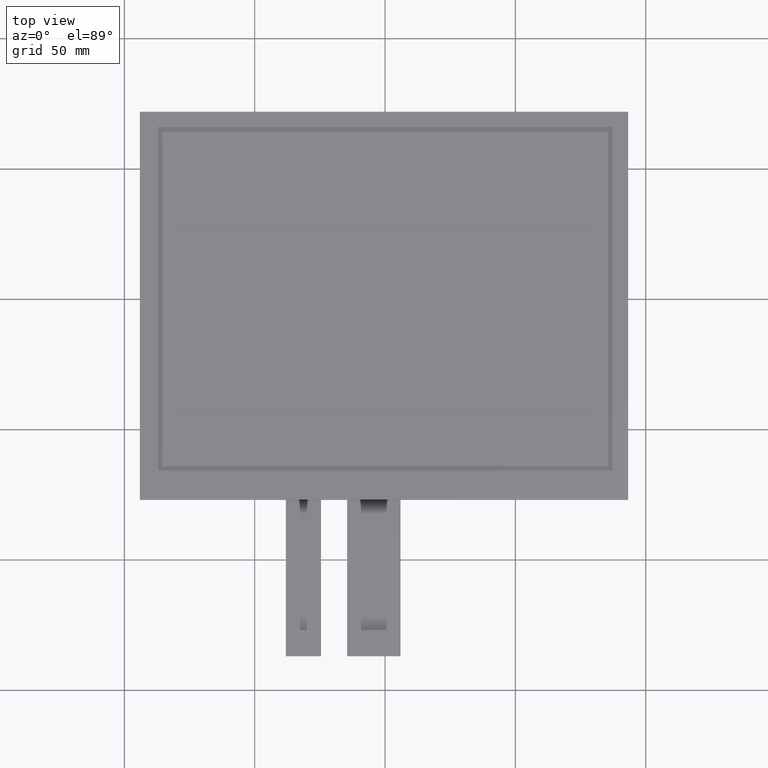
[diagram: clean part render]
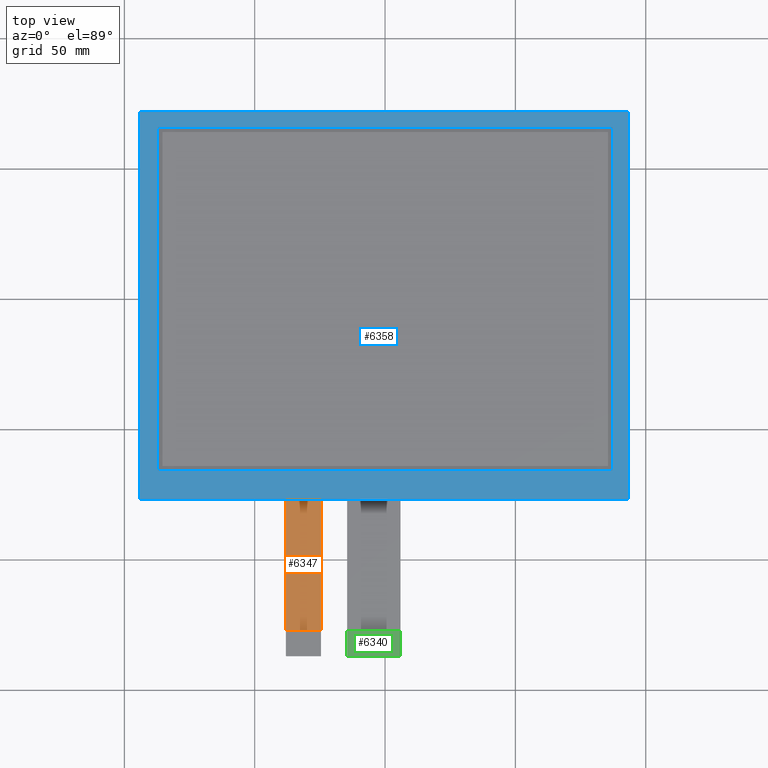
[diagram: same view with three faces highlighted in distinct colors, each labeled with its STEP entity id]
A machine part, top view with three faces highlighted in distinct colors.
Their STEP definitions:

[orange] entity #6347 — the highlighted planar face has unit normal (0, 0, 1).
#409=PLANE('',#6677);
#711=FACE_OUTER_BOUND('',#1013,.T.);
#1013=EDGE_LOOP('',(#5971,#5972,#5973,#5974));
#1850=LINE('',#9848,#2730);
#1865=LINE('',#9878,#2745);
#1876=LINE('',#9899,#2756);
#1877=LINE('',#9901,#2757);
#2730=VECTOR('',#8076,10.);
#2745=VECTOR('',#8101,10.);
#2756=VECTOR('',#8122,10.);
#2757=VECTOR('',#8125,10.);
#3354=VERTEX_POINT('',#9845);
#3355=VERTEX_POINT('',#9847);
#3365=VERTEX_POINT('',#9877);
#3370=VERTEX_POINT('',#9897);
#4218=EDGE_CURVE('',#3355,#3354,#1850,.T.);
#4233=EDGE_CURVE('',#3354,#3365,#1865,.T.);
#4244=EDGE_CURVE('',#3365,#3370,#1876,.T.);
#4245=EDGE_CURVE('',#3355,#3370,#1877,.T.);
#5971=ORIENTED_EDGE('',*,*,#4233,.T.);
#5972=ORIENTED_EDGE('',*,*,#4244,.T.);
#5973=ORIENTED_EDGE('',*,*,#4245,.F.);
#5974=ORIENTED_EDGE('',*,*,#4218,.T.);
#6347=ADVANCED_FACE('',(#711),#409,.T.);
#6677=AXIS2_PLACEMENT_3D('',#9900,#8123,#8124);
#8076=DIRECTION('',(6.66133814775094E-16,-1.,0.));
#8101=DIRECTION('',(1.,0.,0.));
#8122=DIRECTION('',(-2.22044604925031E-16,1.,0.));
#8123=DIRECTION('center_axis',(0.,0.,1.));
#8124=DIRECTION('ref_axis',(1.,0.,0.));
#8125=DIRECTION('',(1.,1.42260291462914E-16,0.));
#9845=CARTESIAN_POINT('',(-38.05,-127.,-1.1));
#9847=CARTESIAN_POINT('',(-38.05,-77.,-1.1));
#9848=CARTESIAN_POINT('',(-38.05,-77.,-1.1));
#9877=CARTESIAN_POINT('',(-24.55,-127.,-1.1));
#9878=CARTESIAN_POINT('',(-27.925,-127.,-1.1));
#9897=CARTESIAN_POINT('',(-24.55,-77.,-1.1));
#9899=CARTESIAN_POINT('',(-24.55,-137.,-1.1));
#9900=CARTESIAN_POINT('Origin',(-31.3,-107.,-1.1));
#9901=CARTESIAN_POINT('',(30.975,-77.,-1.1));

[blue] entity #6358 — the highlighted planar face has unit normal (0, 0, 1).
#126=FACE_BOUND('',#1026,.T.);
#420=PLANE('',#6688);
#722=FACE_OUTER_BOUND('',#1025,.T.);
#1025=EDGE_LOOP('',(#6019,#6020,#6021,#6022));
#1026=EDGE_LOOP('',(#6023,#6024,#6025,#6026));
#1891=LINE('',#9931,#2771);
#1895=LINE('',#9939,#2775);
#1898=LINE('',#9945,#2778);
#1901=LINE('',#9950,#2781);
#1903=LINE('',#9956,#2783);
#1904=LINE('',#9958,#2784);
#1905=LINE('',#9960,#2785);
#1906=LINE('',#9961,#2786);
#2771=VECTOR('',#8151,10.);
#2775=VECTOR('',#8157,10.);
#2778=VECTOR('',#8162,10.);
#2781=VECTOR('',#8167,10.);
#2783=VECTOR('',#8173,10.);
#2784=VECTOR('',#8174,10.);
#2785=VECTOR('',#8175,10.);
#2786=VECTOR('',#8176,10.);
#3379=VERTEX_POINT('',#9929);
#3380=VERTEX_POINT('',#9930);
#3383=VERTEX_POINT('',#9938);
#3385=VERTEX_POINT('',#9944);
#3387=VERTEX_POINT('',#9954);
#3388=VERTEX_POINT('',#9955);
#3389=VERTEX_POINT('',#9957);
#3390=VERTEX_POINT('',#9959);
#4259=EDGE_CURVE('',#3379,#3380,#1891,.T.);
#4263=EDGE_CURVE('',#3383,#3379,#1895,.T.);
#4266=EDGE_CURVE('',#3385,#3383,#1898,.T.);
#4269=EDGE_CURVE('',#3380,#3385,#1901,.T.);
#4271=EDGE_CURVE('',#3387,#3388,#1903,.T.);
#4272=EDGE_CURVE('',#3388,#3389,#1904,.T.);
#4273=EDGE_CURVE('',#3389,#3390,#1905,.T.);
#4274=EDGE_CURVE('',#3390,#3387,#1906,.T.);
#6019=ORIENTED_EDGE('',*,*,#4271,.T.);
#6020=ORIENTED_EDGE('',*,*,#4272,.T.);
#6021=ORIENTED_EDGE('',*,*,#4273,.T.);
#6022=ORIENTED_EDGE('',*,*,#4274,.T.);
#6023=ORIENTED_EDGE('',*,*,#4259,.T.);
#6024=ORIENTED_EDGE('',*,*,#4269,.T.);
#6025=ORIENTED_EDGE('',*,*,#4266,.T.);
#6026=ORIENTED_EDGE('',*,*,#4263,.T.);
#6358=ADVANCED_FACE('',(#722,#126),#420,.T.);
#6688=AXIS2_PLACEMENT_3D('',#9953,#8171,#8172);
#8151=DIRECTION('',(-2.69553389893816E-16,1.,0.));
#8157=DIRECTION('',(-1.,-1.52782985040159E-16,0.));
#8162=DIRECTION('',(0.,-1.,0.));
#8167=DIRECTION('',(1.,0.,0.));
#8171=DIRECTION('center_axis',(0.,0.,1.));
#8172=DIRECTION('ref_axis',(1.,0.,0.));
#8173=DIRECTION('',(-1.,0.,0.));
#8174=DIRECTION('',(2.3859729206182E-16,-1.,0.));
#8175=DIRECTION('',(1.,1.42260291462914E-16,0.));
#8176=DIRECTION('',(-1.1929864603091E-16,1.,0.));
#9929=CARTESIAN_POINT('',(-87.15,-65.9,0.));
#9930=CARTESIAN_POINT('',(-87.15,65.9,0.));
#9931=CARTESIAN_POINT('',(-87.15,-34.225,0.));
#9938=CARTESIAN_POINT('',(87.25,-65.9,0.));
#9939=CARTESIAN_POINT('',(43.425,-65.9,0.));
#9944=CARTESIAN_POINT('',(87.25,65.9,0.));
#9945=CARTESIAN_POINT('',(87.25,31.675,0.));
#9950=CARTESIAN_POINT('',(-43.775,65.9,0.));
#9953=CARTESIAN_POINT('Origin',(-0.400000000000009,-2.54999999999999,0.));
#9954=CARTESIAN_POINT('',(93.25,71.9,0.));
#9955=CARTESIAN_POINT('',(-94.05,71.9,0.));
#9956=CARTESIAN_POINT('',(93.25,71.9,0.));
#9957=CARTESIAN_POINT('',(-94.05,-77.,0.));
#9958=CARTESIAN_POINT('',(-94.05,71.9,0.));
#9959=CARTESIAN_POINT('',(93.25,-77.,0.));
#9960=CARTESIAN_POINT('',(-94.05,-77.,0.));
#9961=CARTESIAN_POINT('',(93.25,-77.,0.));

[green] entity #6340 — the highlighted planar face has unit normal (0, 0, 1).
#402=PLANE('',#6670);
#704=FACE_OUTER_BOUND('',#1006,.T.);
#1006=EDGE_LOOP('',(#5931,#5932,#5933,#5934,#5935,#5936));
#1041=LINE('',#8217,#1921);
#1856=LINE('',#9860,#2736);
#1862=LINE('',#9872,#2742);
#1864=LINE('',#9875,#2744);
#1921=VECTOR('',#6713,10.);
#2736=VECTOR('',#8086,10.);
#2742=VECTOR('',#8094,10.);
#2744=VECTOR('',#8098,10.);
#2796=CIRCLE('',#6387,0.2);
#2797=CIRCLE('',#6391,0.2);
#2805=VERTEX_POINT('',#8202);
#2806=VERTEX_POINT('',#8204);
#2810=VERTEX_POINT('',#8216);
#2971=VERTEX_POINT('',#8540);
#3359=VERTEX_POINT('',#9859);
#3364=VERTEX_POINT('',#9871);
#3397=EDGE_CURVE('',#2805,#2806,#2796,.T.);
#3403=EDGE_CURVE('',#2810,#2806,#1041,.T.);
#3565=EDGE_CURVE('',#2810,#2971,#2797,.T.);
#4224=EDGE_CURVE('',#3359,#2971,#1856,.T.);
#4230=EDGE_CURVE('',#3364,#3359,#1862,.T.);
#4232=EDGE_CURVE('',#2805,#3364,#1864,.T.);
#5931=ORIENTED_EDGE('',*,*,#3397,.F.);
#5932=ORIENTED_EDGE('',*,*,#4232,.T.);
#5933=ORIENTED_EDGE('',*,*,#4230,.T.);
#5934=ORIENTED_EDGE('',*,*,#4224,.T.);
#5935=ORIENTED_EDGE('',*,*,#3565,.F.);
#5936=ORIENTED_EDGE('',*,*,#3403,.T.);
#6340=ADVANCED_FACE('',(#704),#402,.T.);
#6387=AXIS2_PLACEMENT_3D('',#8205,#6702,#6703);
#6391=AXIS2_PLACEMENT_3D('',#8541,#6877,#6878);
#6670=AXIS2_PLACEMENT_3D('',#9874,#8096,#8097);
#6702=DIRECTION('center_axis',(0.,0.,-1.));
#6703=DIRECTION('ref_axis',(0.707106781186555,-0.70710678118654,0.));
#6713=DIRECTION('',(1.,0.,0.));
#6877=DIRECTION('center_axis',(0.,0.,-1.));
#6878=DIRECTION('ref_axis',(-0.707106781186555,-0.70710678118654,0.));
#8086=DIRECTION('',(2.22044604925031E-16,-1.,0.));
#8094=DIRECTION('',(-1.,0.,0.));
#8096=DIRECTION('center_axis',(0.,0.,1.));
#8097=DIRECTION('ref_axis',(1.,0.,0.));
#8098=DIRECTION('',(-2.22044604925031E-16,1.,0.));
#8202=CARTESIAN_POINT('',(5.95000000000003,-136.8,-0.8));
#8204=CARTESIAN_POINT('',(5.75000000000003,-137.,-0.8));
#8205=CARTESIAN_POINT('Origin',(5.75000000000003,-136.8,-0.8));
#8216=CARTESIAN_POINT('',(-14.35,-137.,-0.8));
#8217=CARTESIAN_POINT('',(-14.55,-137.,-0.8));
#8540=CARTESIAN_POINT('',(-14.55,-136.8,-0.8));
#8541=CARTESIAN_POINT('Origin',(-14.35,-136.8,-0.8));
#9859=CARTESIAN_POINT('',(-14.55,-127.,-0.8));
#9860=CARTESIAN_POINT('',(-14.55,-127.,-0.8));
#9871=CARTESIAN_POINT('',(5.95000000000003,-127.,-0.8));
#9872=CARTESIAN_POINT('',(5.95000000000003,-127.,-0.8));
#9874=CARTESIAN_POINT('Origin',(-4.29999999999997,-132.,-0.8));
#9875=CARTESIAN_POINT('',(5.95000000000003,-137.,-0.8));